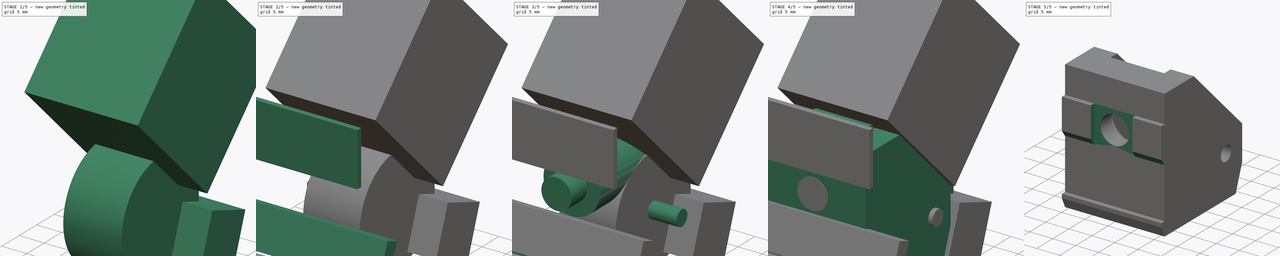
[diagram: build sequence overview — one tinted view per stage of 5, left to right]
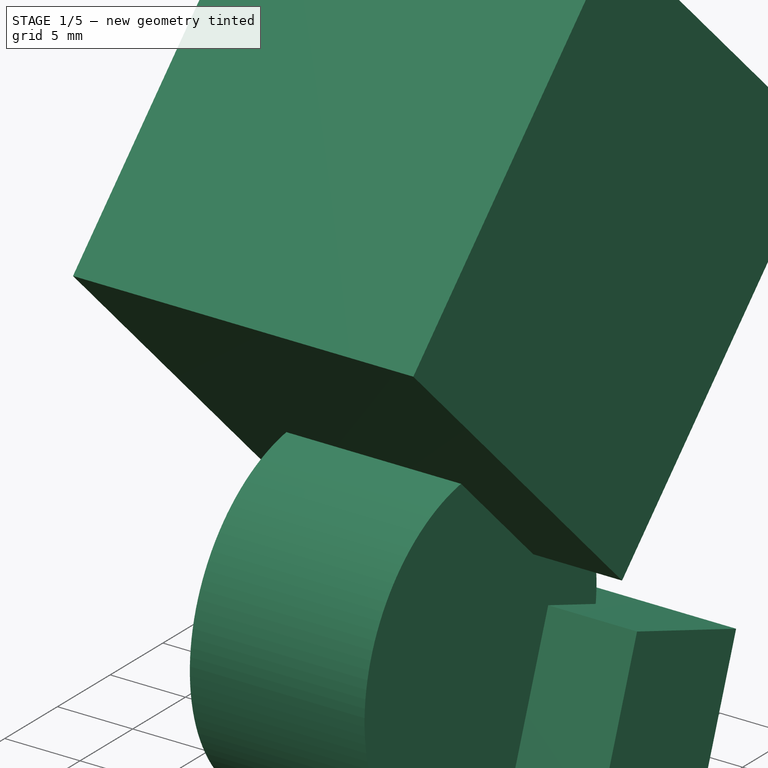
[diagram: stage 1 of 5 — iso view after this stage's code; geometry added in this stage tinted green]
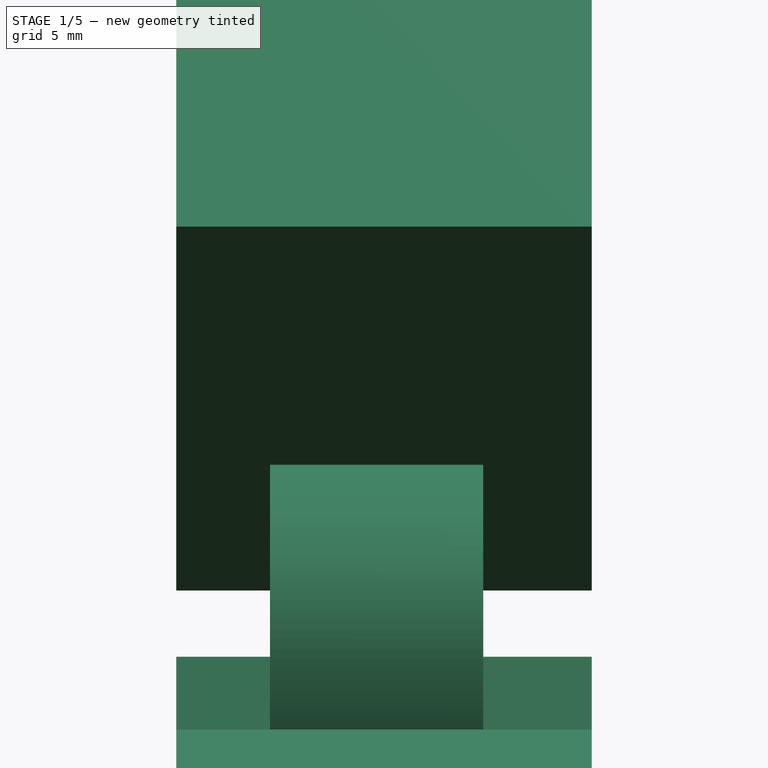
[diagram: stage 1 of 5 — front view after this stage's code; geometry added in this stage tinted green]
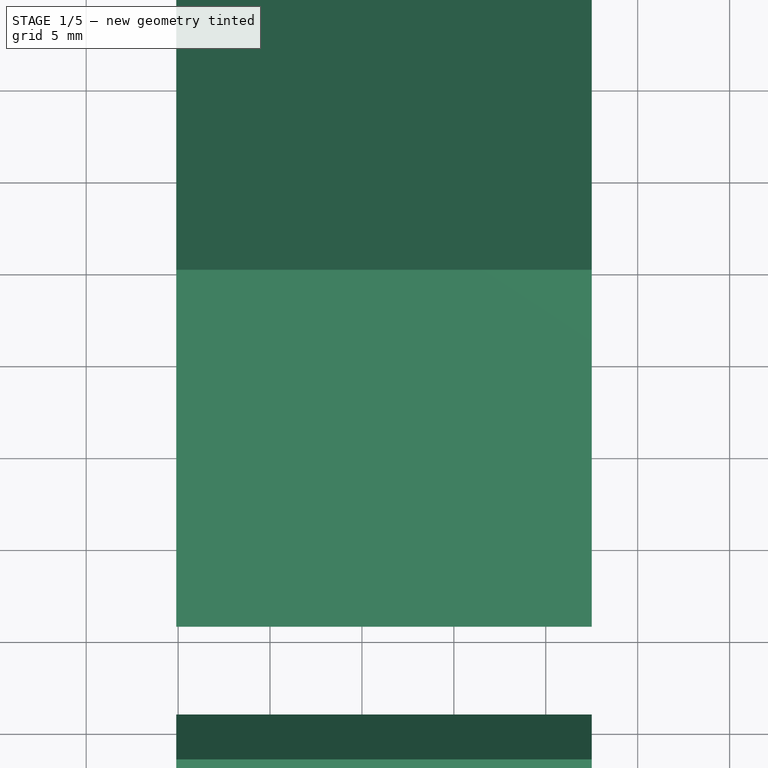
[diagram: stage 1 of 5 — top view after this stage's code; geometry added in this stage tinted green]
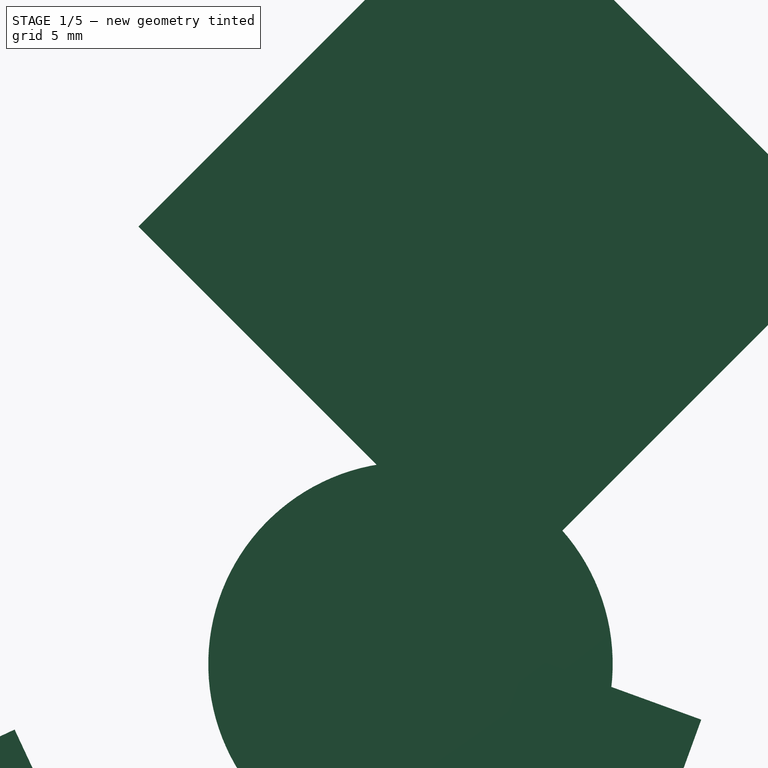
[diagram: stage 1 of 5 — right view after this stage's code; geometry added in this stage tinted green]
FCSTD DOCUMENT  (FreeCAD 0.19R)
Label: y-idler
License: All rights reserved
LicenseURL: http://en.wikipedia.org/wiki/All_rights_reserved
objects: Part::Box×8, Part::Cylinder×4, Part::Prism×1, Part::MultiFuse×1, Part::Cut×1, PartDesign::FeatureBase×1, Sketcher::SketchObject×1, PartDesign::Pocket×1, PartDesign::Chamfer×1, PartDesign::Body×1
note: 22 computed .brp shape members not serialized (recipe doc carries the construction recipe); baked Part::Feature solids carry a one-line shape summary decoded from their .brp

FEATURE [Part::Box] cube005
  AttacherType = Attacher::AttachEngine3D
  Height = 6
  Length = 22.6
  Placement = pos=(-0.1,1,0) rot=(1,0,0;2.00713rad)
  Width = 6
FEATURE [Part::Box] cube006
  AttacherType = Attacher::AttachEngine3D
  Height = 28
  Length = 22.6
  Placement = pos=(-0.1,25,13) rot=(1,0,0;0.785398rad)
  Width = 27
FEATURE [Part::Box] cube007
  AttacherType = Attacher::AttachEngine3D
  Height = 10
  Length = 22.6
  Placement = pos=(-0.1,23,0) rot=(-1,0,0;0.349066rad)
  Width = 10
FEATURE [Part::Cylinder] cylinder003
  Angle = 360
  AttacherType = Attacher::AttachEngine3D
  Height = 11.6
  Placement = pos=(5,20,9) rot=(0,1,0;1.5708rad)
  Radius = 11
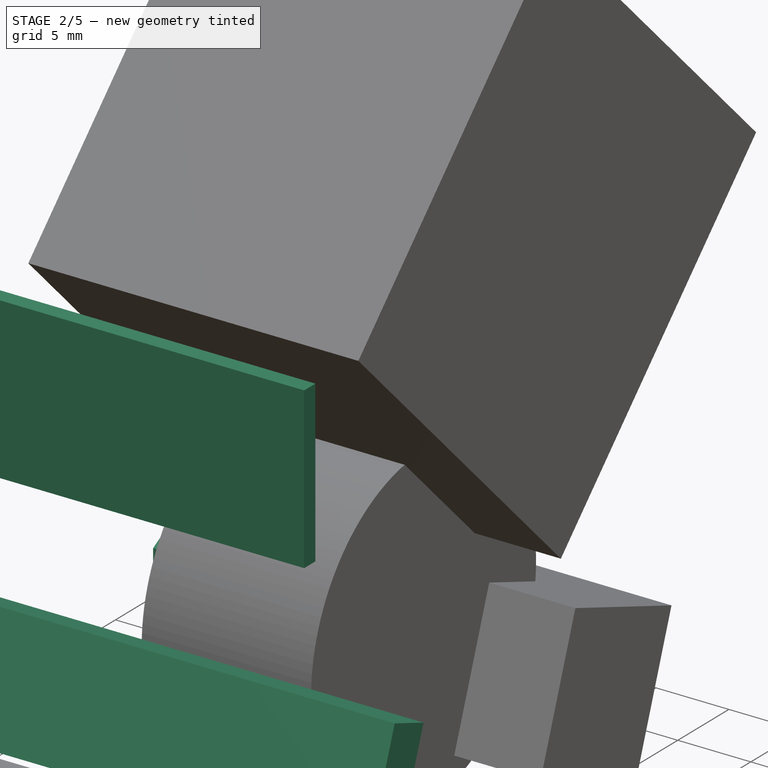
[diagram: stage 2 of 5 — iso view after this stage's code; geometry added in this stage tinted green]
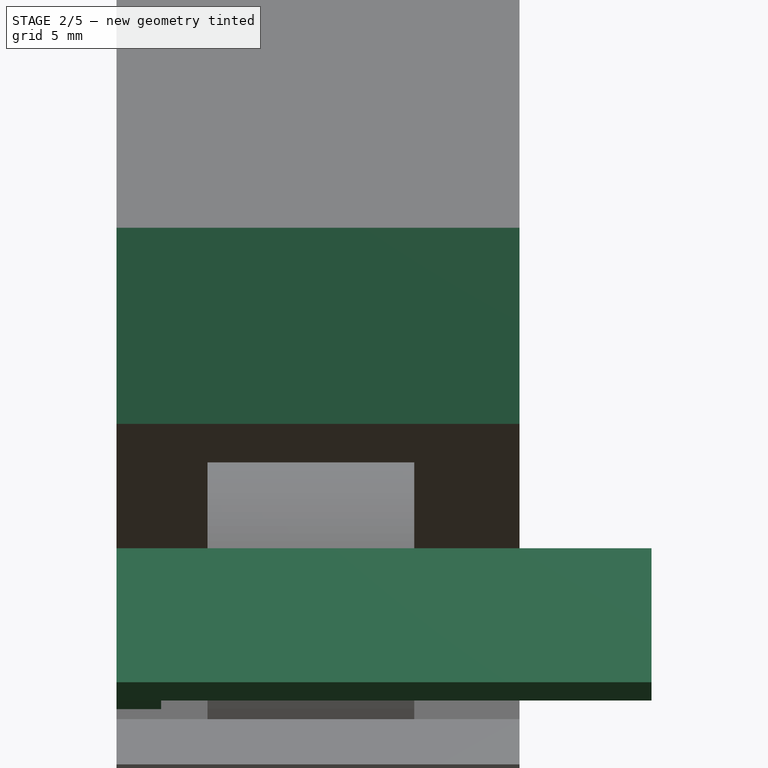
[diagram: stage 2 of 5 — front view after this stage's code; geometry added in this stage tinted green]
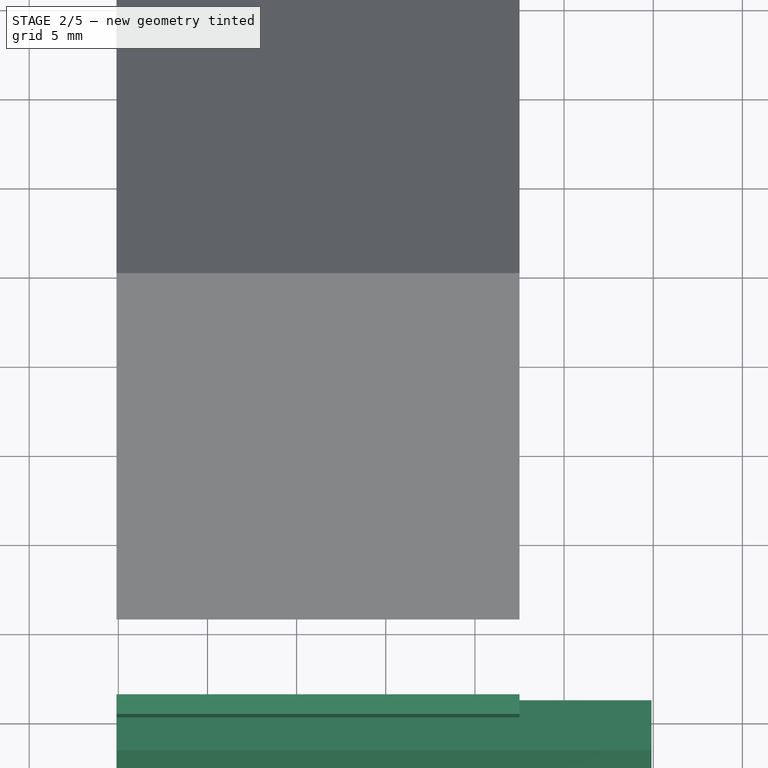
[diagram: stage 2 of 5 — top view after this stage's code; geometry added in this stage tinted green]
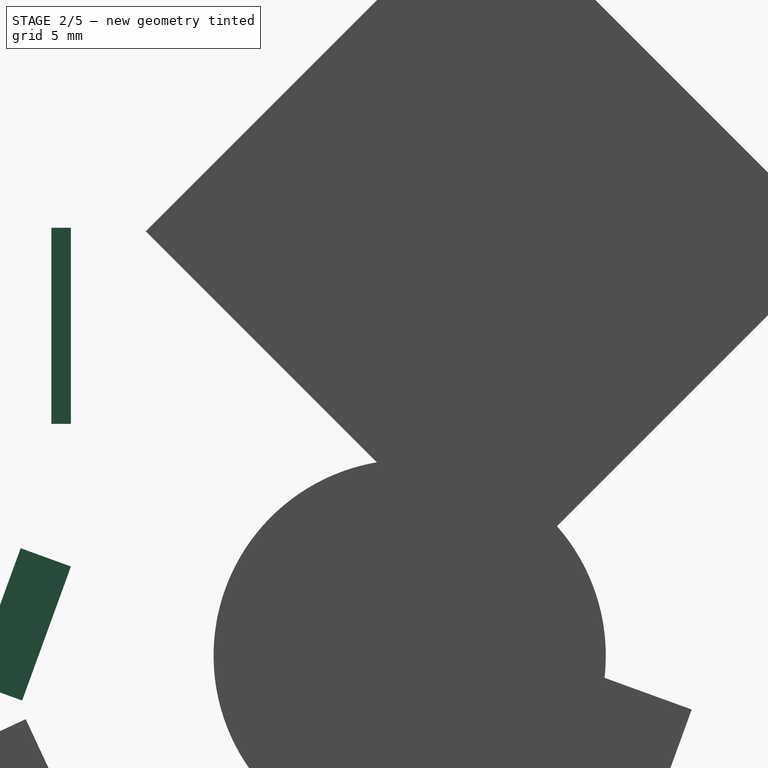
[diagram: stage 2 of 5 — right view after this stage's code; geometry added in this stage tinted green]
FEATURE [Part::Box] cube003
  AttacherType = Attacher::AttachEngine3D
  Height = 11
  Length = 22.6
  Placement = pos=(-0.1,-0.1,22) rot=(0,0,1;0rad)
  Width = 1.1
FEATURE [Part::Box] cube004
  AttacherType = Attacher::AttachEngine3D
  Height = 8
  Length = 30
  Placement = pos=(-0.1,1,14) rot=(1,0,0;2.79253rad)
  Width = 3
FEATURE [Part::Prism] prism
  AttacherType = Attacher::AttachEngine3D
  Circumradius = 3
  Height = 2.5
  Placement = pos=(-0.1,20,9) rot=(0,1,0;1.5708rad)
  Polygon = 6
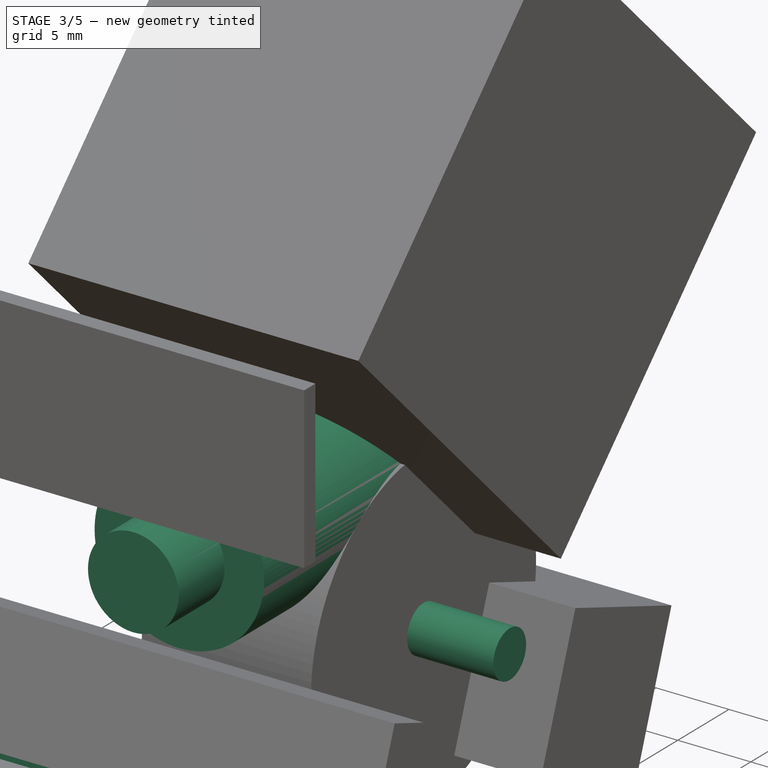
[diagram: stage 3 of 5 — iso view after this stage's code; geometry added in this stage tinted green]
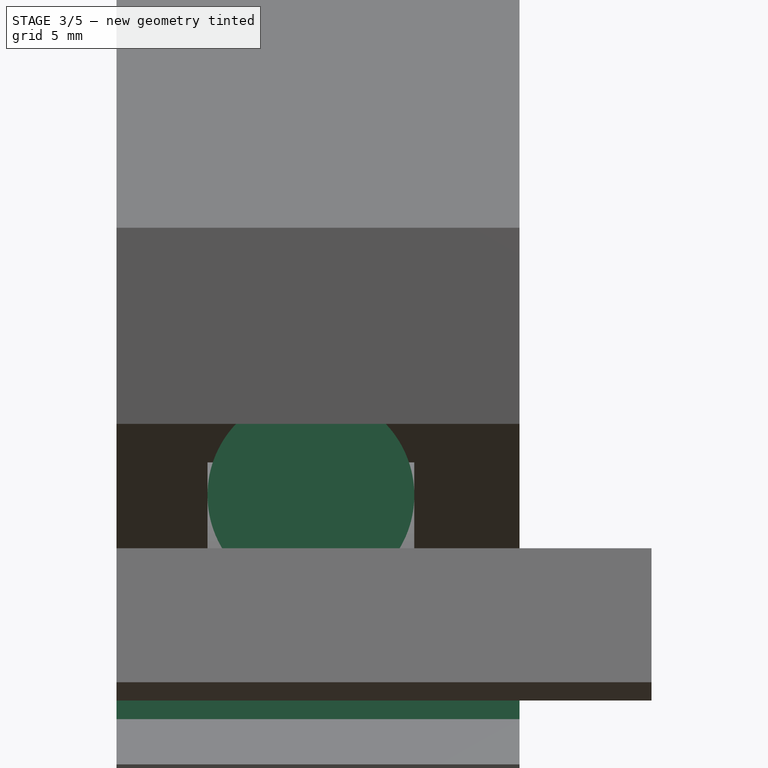
[diagram: stage 3 of 5 — front view after this stage's code; geometry added in this stage tinted green]
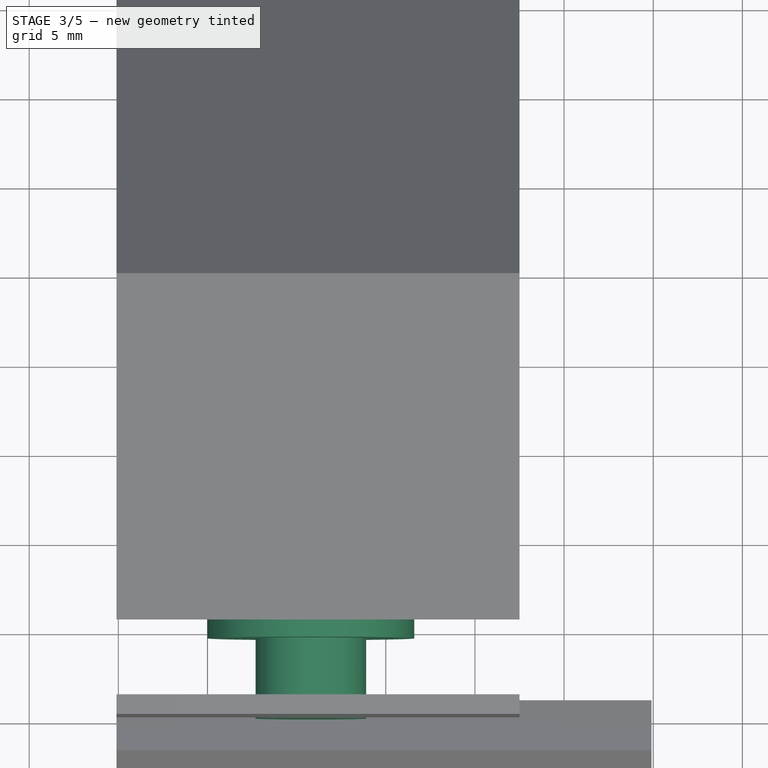
[diagram: stage 3 of 5 — top view after this stage's code; geometry added in this stage tinted green]
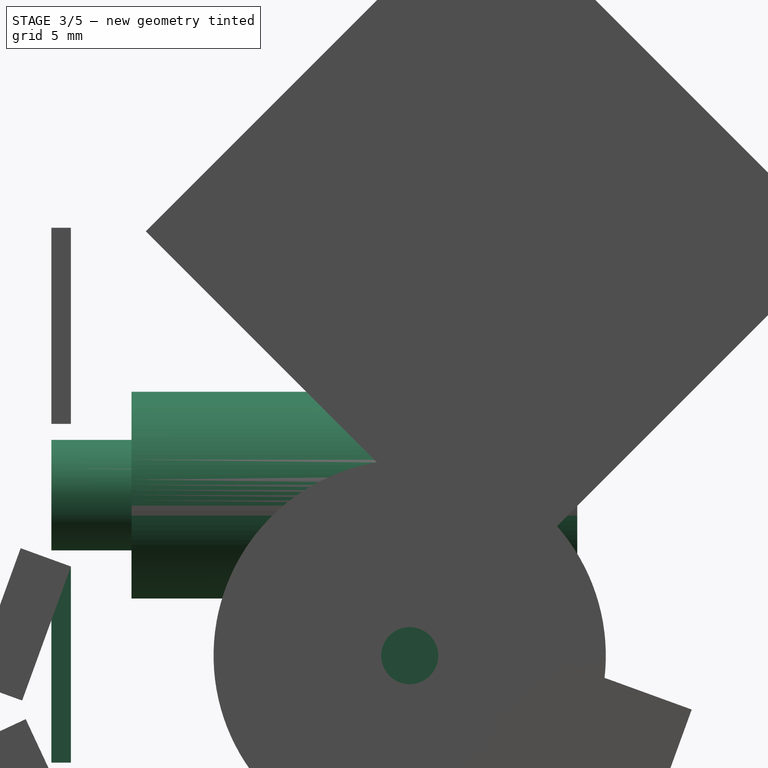
[diagram: stage 3 of 5 — right view after this stage's code; geometry added in this stage tinted green]
FEATURE [Part::Cylinder] cylinder
  Angle = 360
  AttacherType = Attacher::AttachEngine3D
  Height = 22.6
  Placement = pos=(-0.1,20,9) rot=(0,1,0;1.5708rad)
  Radius = 1.6
FEATURE [Part::Cylinder] cylinder001
  Angle = 360
  AttacherType = Attacher::AttachEngine3D
  Height = 25
  Placement = pos=(10.8,-0.1,18) rot=(-1,0,0;1.5708rad)
  Radius = 3.1
FEATURE [Part::Cylinder] cylinder002
  Angle = 360
  AttacherType = Attacher::AttachEngine3D
  Height = 25
  Placement = pos=(10.8,4.4,18) rot=(-1,0,0;1.5708rad)
  Radius = 5.8
FEATURE [Part::Box] cube002
  AttacherType = Attacher::AttachEngine3D
  Height = 11
  Length = 22.6
  Placement = pos=(-0.1,-0.1,3) rot=(0,0,1;0rad)
  Width = 1.1
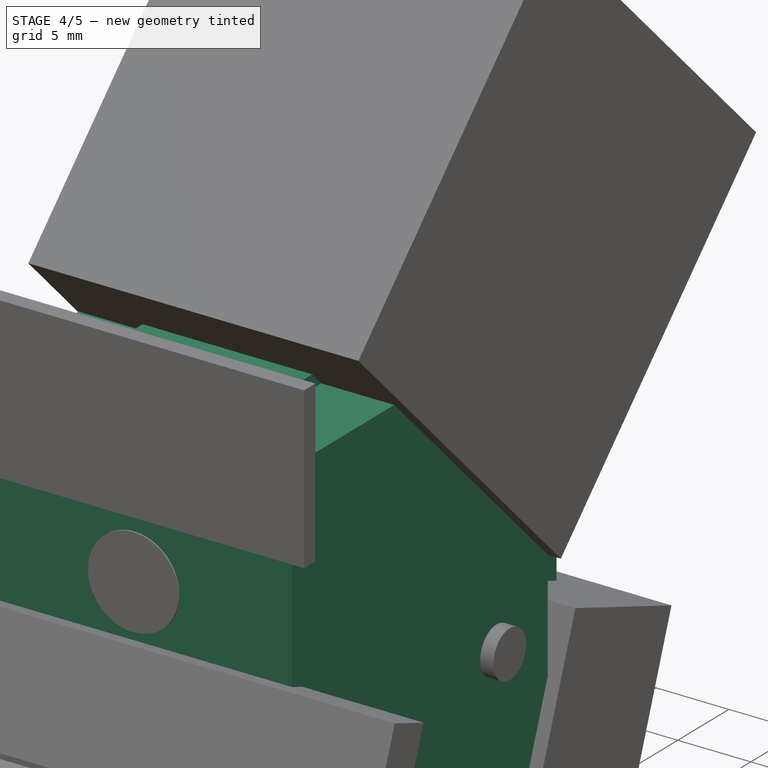
[diagram: stage 4 of 5 — iso view after this stage's code; geometry added in this stage tinted green]
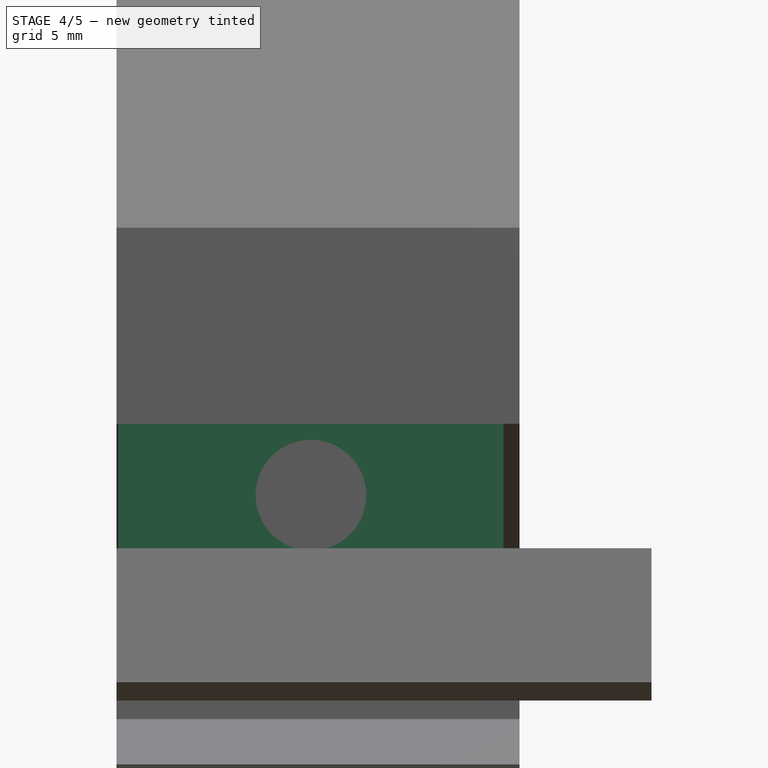
[diagram: stage 4 of 5 — front view after this stage's code; geometry added in this stage tinted green]
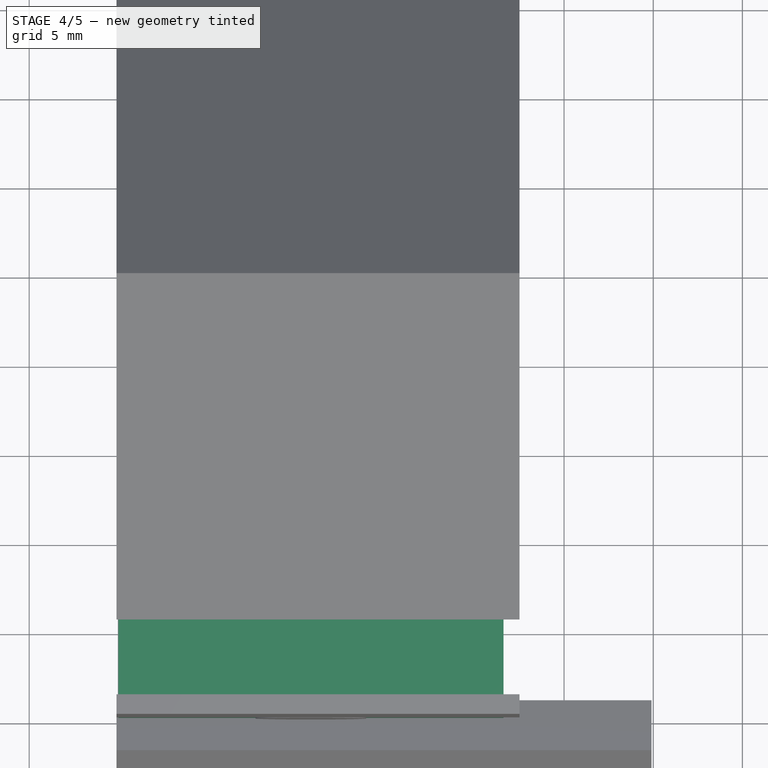
[diagram: stage 4 of 5 — top view after this stage's code; geometry added in this stage tinted green]
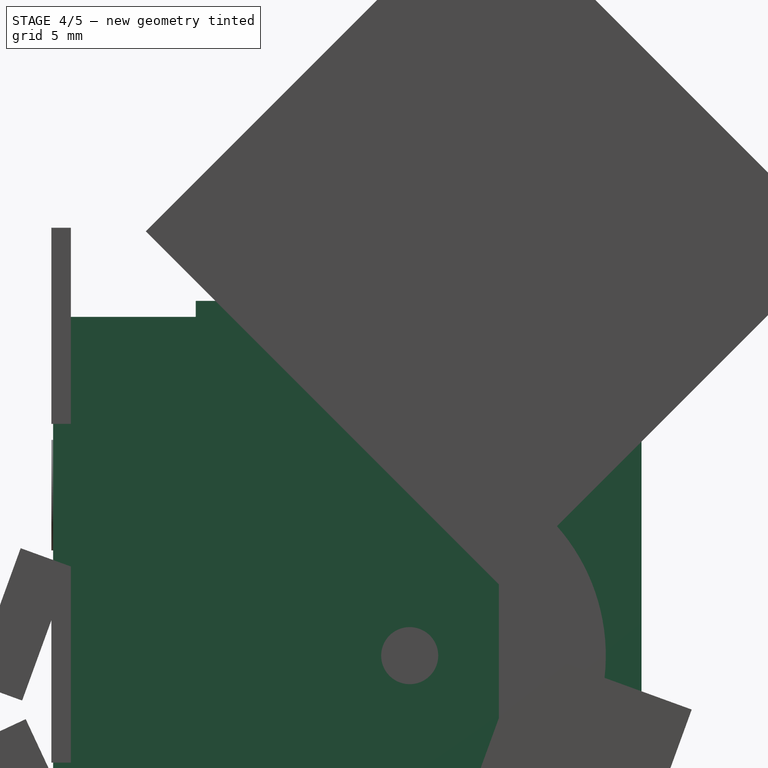
[diagram: stage 4 of 5 — right view after this stage's code; geometry added in this stage tinted green]
FEATURE [Part::Box] cube
  AttacherType = Attacher::AttachEngine3D
  Height = 28
  Length = 21.6
  Width = 25
FEATURE [Part::Box] cube001
  AttacherType = Attacher::AttachEngine3D
  Height = 29
  Length = 11.6
  Placement = pos=(5,8,-0.1) rot=(0,0,1;0rad)
  Width = 25
FEATURE [Part::MultiFuse] Group
  Shapes = -> [cube001,cylinder,cylinder001,cylinder002,cube002,cube003,cube004,prism,cube005,cube006,cube007,cylinder003]
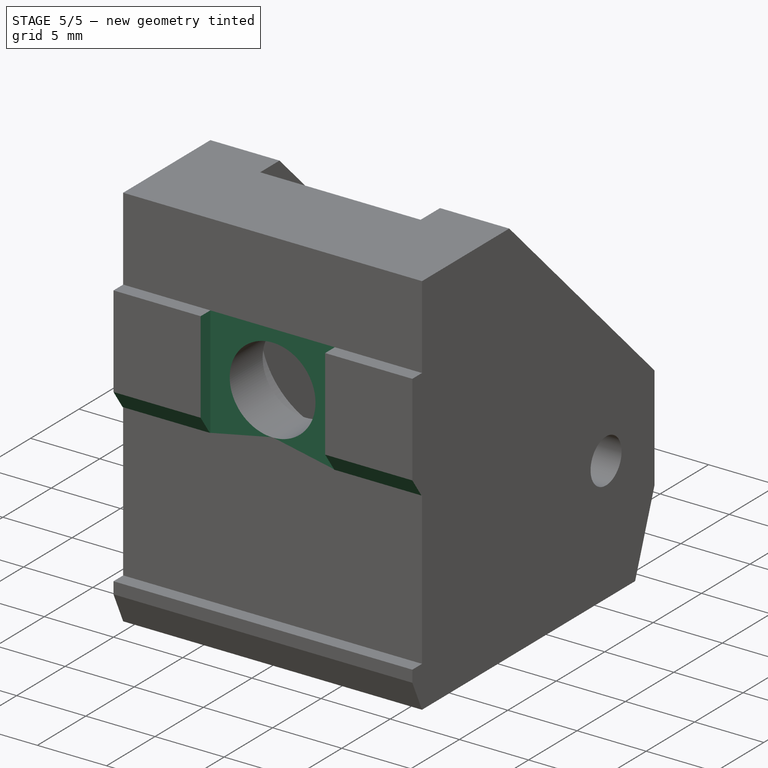
[diagram: stage 5 of 5 — iso view after this stage's code; geometry added in this stage tinted green]
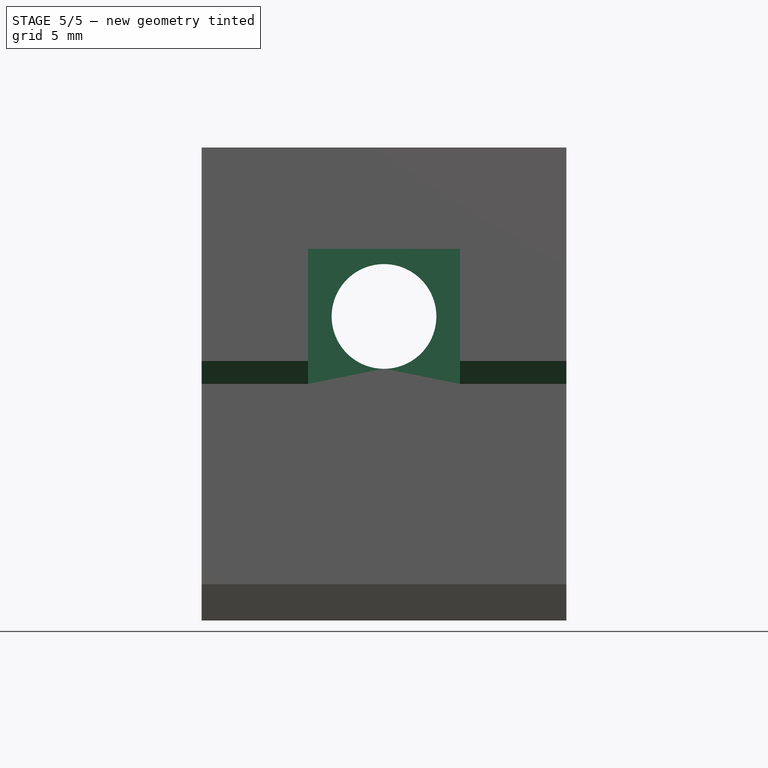
[diagram: stage 5 of 5 — front view after this stage's code; geometry added in this stage tinted green]
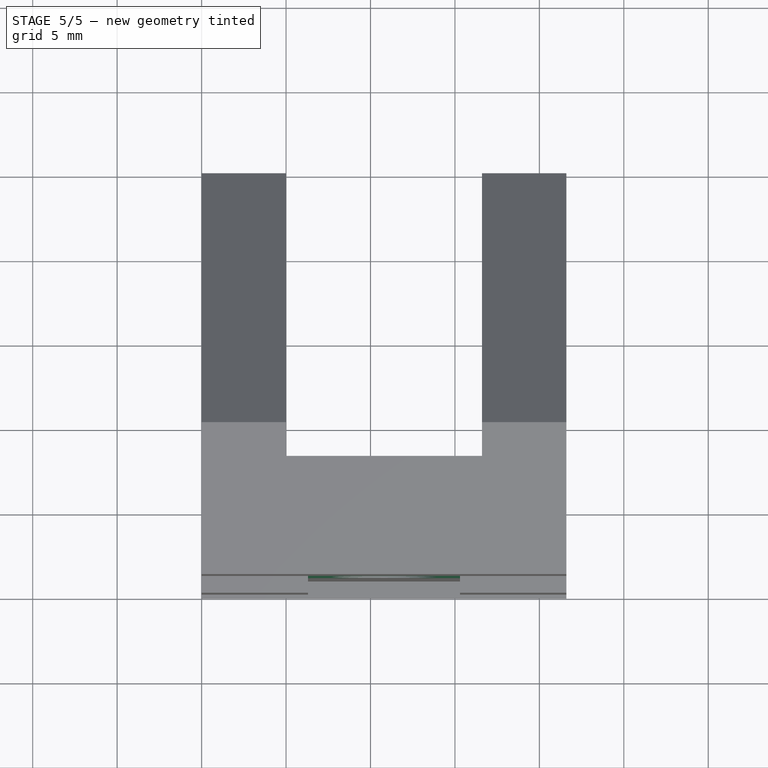
[diagram: stage 5 of 5 — top view after this stage's code; geometry added in this stage tinted green]
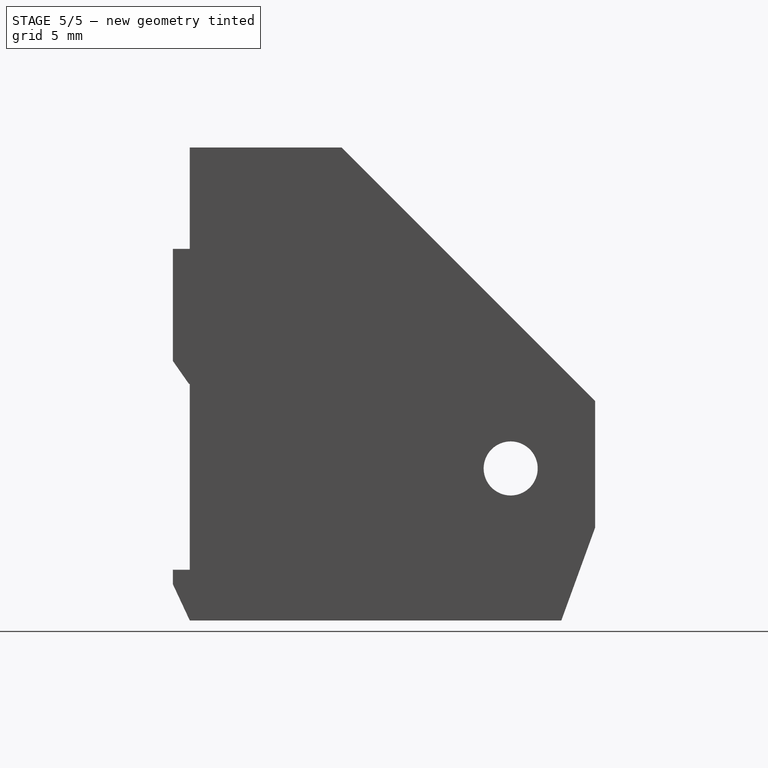
[diagram: stage 5 of 5 — right view after this stage's code; geometry added in this stage tinted green]
FEATURE [Part::Cut] difference
  Base = -> cube
  Tool = -> Group
FEATURE [PartDesign::FeatureBase] BaseFeature
  BaseFeature = -> difference
FEATURE [Sketcher::SketchObject] Sketch
  ExternalGeometry = -> [BaseFeature]
  MapMode = 5
  Placement = pos=(0,0,0) rot=(1,0,0;1.5708rad)
  Support = -> [BaseFeature]
  sketch-geometry (5):
    g0: LineSegment StartX=6.3 StartY=22 StartZ=0 EndX=15.3 EndY=22 EndZ=0
    g1: LineSegment StartX=15.3 StartY=22 StartZ=0 EndX=15.3 EndY=14 EndZ=0
    g2: LineSegment StartX=15.3 StartY=14 StartZ=0 EndX=6.3 EndY=14 EndZ=0
    g3: LineSegment StartX=6.3 StartY=14 StartZ=0 EndX=6.3 EndY=22 EndZ=0
    g4: LineSegment [constr] StartX=10.8 StartY=18 StartZ=0 EndX=10.8 EndY=14 EndZ=0
  constraints (14):
    c: Coincident(g0,g1)
    c: Coincident(g1,g2)
    c: Coincident(g2,g3)
    c: Coincident(g3,g0)
    c: Horizontal(g0)
    c: Horizontal(g2)
    c: Vertical(g1)
    c: Vertical(g3)
    c: PointOnObject(g0,g-5)
    c: PointOnObject(g1,g-4)
    c: Coincident(g4,g-3)
    c: PointOnObject(g4,g2)
    c: Symmetric(g2,g1,g4)
    c: DistanceX(g0,g0) = 9
FEATURE [PartDesign::Pocket] Pocket
  BaseFeature = -> BaseFeature
  Length = 1
  Length2 = 100
  Profile = -> Sketch
  Refine = true
  Type = 0
FEATURE [PartDesign::Chamfer] Chamfer
  Angle = 45
  Base = -> Pocket [Edge73,Edge25]
  BaseFeature = -> Pocket
  ChamferType = 0
  FlipDirection = false
  Size = 1
  Size2 = 1
  SupportTransform = false
FEATURE [PartDesign::Body] Body
  BaseFeature = -> difference
  Group = -> [BaseFeature,Sketch,Pocket,Chamfer]
  Origin = -> Origin
  Tip = -> Chamfer
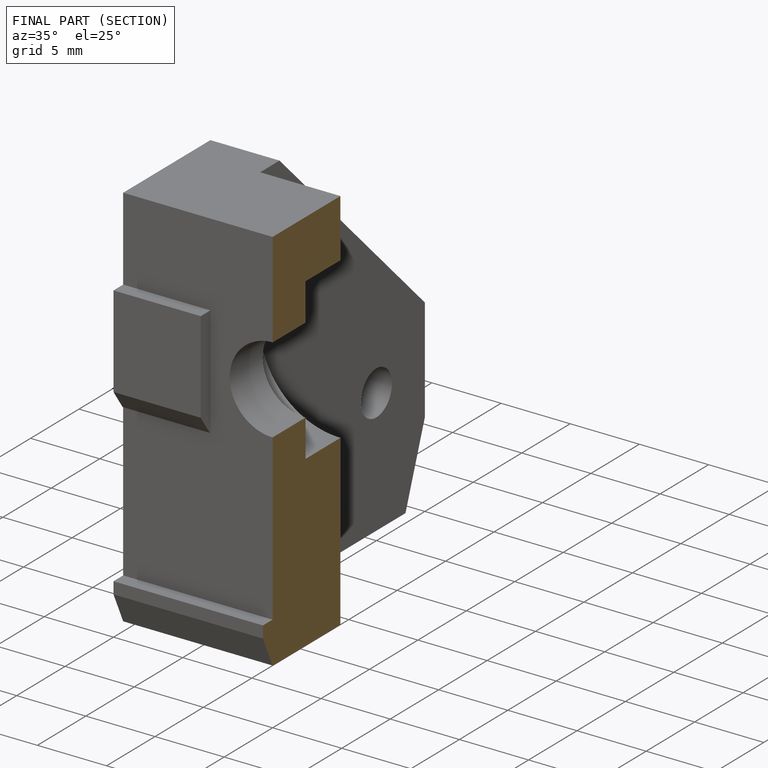
[diagram: finished part — half-section view (interior)]
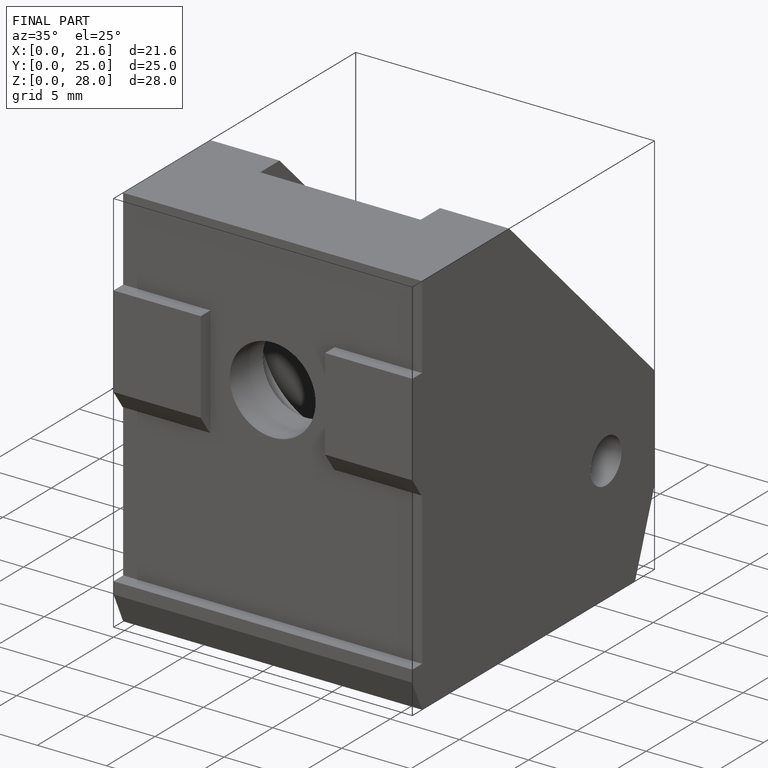
[diagram: finished part — iso view with bounding-box wireframe]
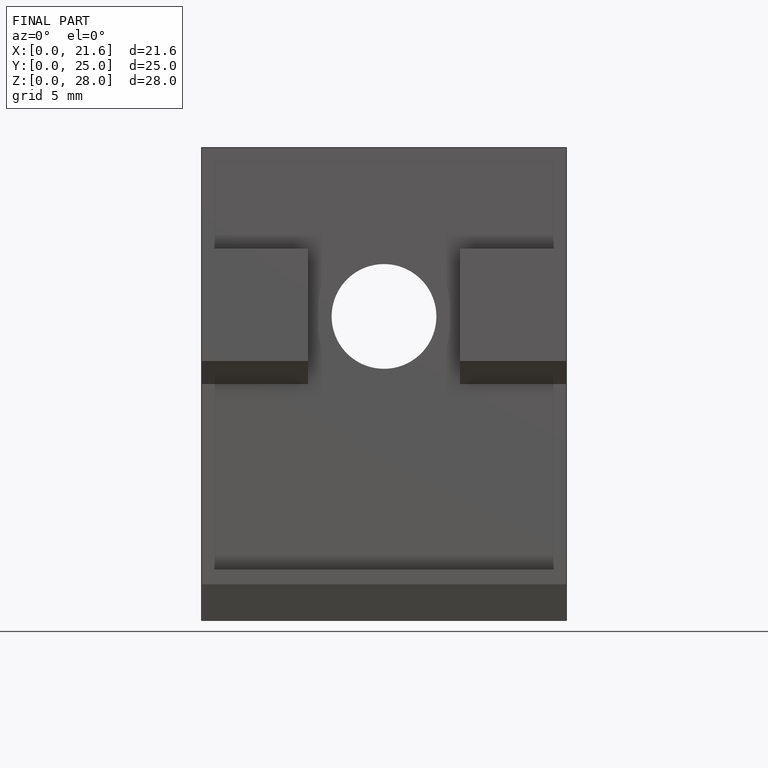
[diagram: finished part — front view with bounding-box wireframe]
